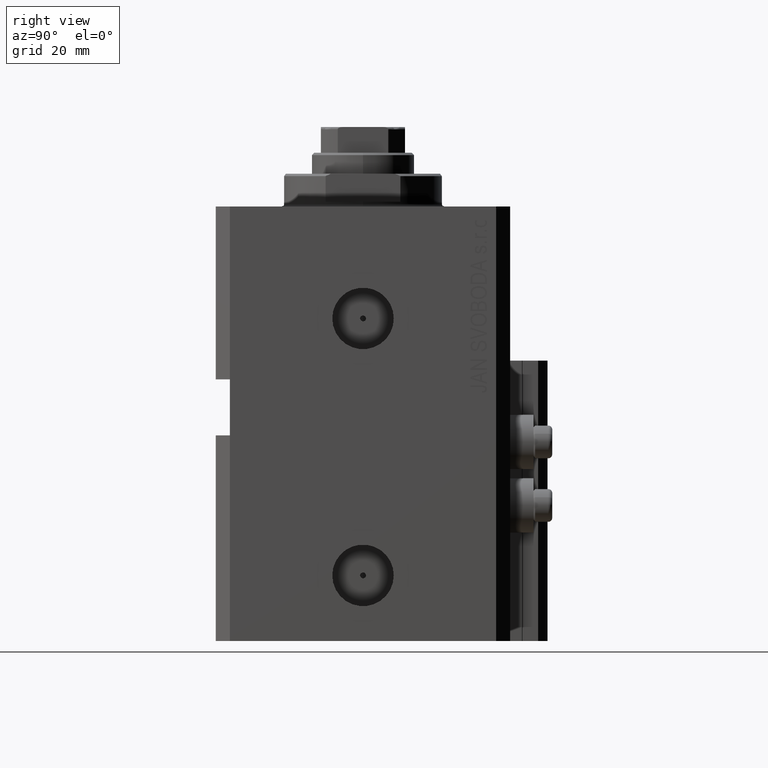
[diagram: clean part render]
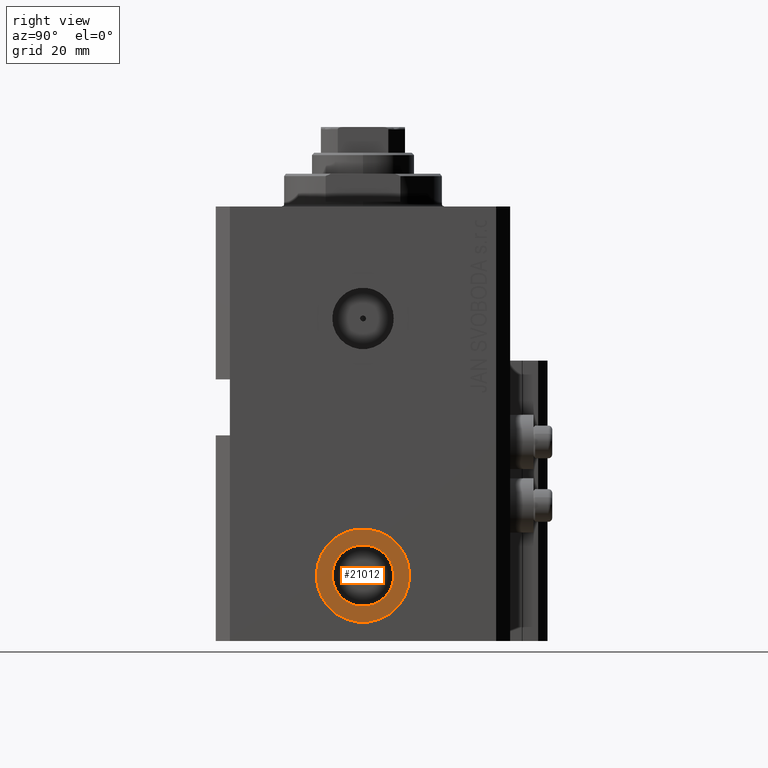
[diagram: same view with one face highlighted and labeled with its STEP entity id]
A machine part, right view. The second image highlights one B-rep face of the part: STEP entity #21012.
In plain terms, the highlighted planar face has unit normal (1, -0, 0).
Its self-contained STEP definition (entity closure, byte-faithful):
#1413 = DIRECTION ( 'NONE',  ( 1.370906090437600963E-14, 1.000000000000000000, 0.000000000000000000 ) ) ;
#4325 = FACE_BOUND ( 'NONE', #22253, .T. ) ;
#4890 = EDGE_CURVE ( 'NONE', #18149, #11537, #22765, .T. ) ;
#7225 = DIRECTION ( 'NONE',  ( 1.334402673828349134E-14, 1.000000000000000000, 0.000000000000000000 ) ) ;
#8614 = CARTESIAN_POINT ( 'NONE',  ( 42.40000000000026148, -3.763483751660370480E-13, -79.00000000000000000 ) ) ;
#10159 = CARTESIAN_POINT ( 'NONE',  ( 42.40000000000017621, -6.580000000000363336, -79.00000000000000000 ) ) ;
#10825 = AXIS2_PLACEMENT_3D ( 'NONE', #25441, #44450, #33384 ) ;
#10834 = CARTESIAN_POINT ( 'NONE',  ( 42.40000000000026148, -3.763483751660370480E-13, -79.00000000000000000 ) ) ;
#11537 = VERTEX_POINT ( 'NONE', #25076 ) ;
#11773 = PLANE ( 'NONE',  #12571 ) ;
#12571 = AXIS2_PLACEMENT_3D ( 'NONE', #10834, #40202, #7225 ) ;
#12757 = EDGE_CURVE ( 'NONE', #25303, #32958, #30720, .T. ) ;
#12819 = CIRCLE ( 'NONE', #34342, 9.999999999999994671 ) ;
#14110 = EDGE_CURVE ( 'NONE', #32958, #25303, #41528, .T. ) ;
#15465 = ORIENTED_EDGE ( 'NONE', *, *, #40160, .T. ) ;
#17170 = CARTESIAN_POINT ( 'NONE',  ( 42.40000000000026148, -3.763483751660370480E-13, -79.00000000000000000 ) ) ;
#18149 = VERTEX_POINT ( 'NONE', #25363 ) ;
#19007 = FACE_OUTER_BOUND ( 'NONE', #20789, .T. ) ;
#19517 = ORIENTED_EDGE ( 'NONE', *, *, #12757, .F. ) ;
#20187 = DIRECTION ( 'NONE',  ( 1.000000000000000000, -1.334402673828349134E-14, 0.000000000000000000 ) ) ;
#20789 = EDGE_LOOP ( 'NONE', ( #15465, #35548 ) ) ;
#21012 = ADVANCED_FACE ( 'NONE', ( #4325, #19007 ), #11773, .T. ) ;
#22036 = CARTESIAN_POINT ( 'NONE',  ( 42.40000000000035385, 6.579999999999611049, -79.00000000000000000 ) ) ;
#22253 = EDGE_LOOP ( 'NONE', ( #19517, #24698 ) ) ;
#22765 = CIRCLE ( 'NONE', #27425, 9.999999999999994671 ) ;
#24698 = ORIENTED_EDGE ( 'NONE', *, *, #14110, .F. ) ;
#25058 = CARTESIAN_POINT ( 'NONE',  ( 42.40000000000026148, -3.763483751660370480E-13, -79.00000000000000000 ) ) ;
#25076 = CARTESIAN_POINT ( 'NONE',  ( 42.40000000000039648, 9.999999999999618083, -79.00000000000000000 ) ) ;
#25303 = VERTEX_POINT ( 'NONE', #22036 ) ;
#25361 = AXIS2_PLACEMENT_3D ( 'NONE', #8614, #20187, #1413 ) ;
#25363 = CARTESIAN_POINT ( 'NONE',  ( 42.40000000000013358, -10.00000000000037126, -79.00000000000000000 ) ) ;
#25441 = CARTESIAN_POINT ( 'NONE',  ( 42.40000000000026148, -3.763483751660370480E-13, -79.00000000000000000 ) ) ;
#27425 = AXIS2_PLACEMENT_3D ( 'NONE', #17170, #46047, #39303 ) ;
#29152 = DIRECTION ( 'NONE',  ( 1.000000000000000000, -1.334402673828349134E-14, 0.000000000000000000 ) ) ;
#30720 = CIRCLE ( 'NONE', #25361, 6.579999999999987637 ) ;
#32958 = VERTEX_POINT ( 'NONE', #10159 ) ;
#33384 = DIRECTION ( 'NONE',  ( 1.370906090437600963E-14, 1.000000000000000000, 0.000000000000000000 ) ) ;
#34342 = AXIS2_PLACEMENT_3D ( 'NONE', #25058, #29152, #39752 ) ;
#35548 = ORIENTED_EDGE ( 'NONE', *, *, #4890, .T. ) ;
#39303 = DIRECTION ( 'NONE',  ( 1.318389841742374023E-14, 1.000000000000000000, 0.000000000000000000 ) ) ;
#39752 = DIRECTION ( 'NONE',  ( 1.318389841742374023E-14, 1.000000000000000000, 0.000000000000000000 ) ) ;
#40160 = EDGE_CURVE ( 'NONE', #11537, #18149, #12819, .T. ) ;
#40202 = DIRECTION ( 'NONE',  ( 1.000000000000000000, -1.334402673828349134E-14, 0.000000000000000000 ) ) ;
#41528 = CIRCLE ( 'NONE', #10825, 6.579999999999987637 ) ;
#44450 = DIRECTION ( 'NONE',  ( 1.000000000000000000, -1.334402673828349134E-14, 0.000000000000000000 ) ) ;
#46047 = DIRECTION ( 'NONE',  ( 1.000000000000000000, -1.334402673828349134E-14, 0.000000000000000000 ) ) ;